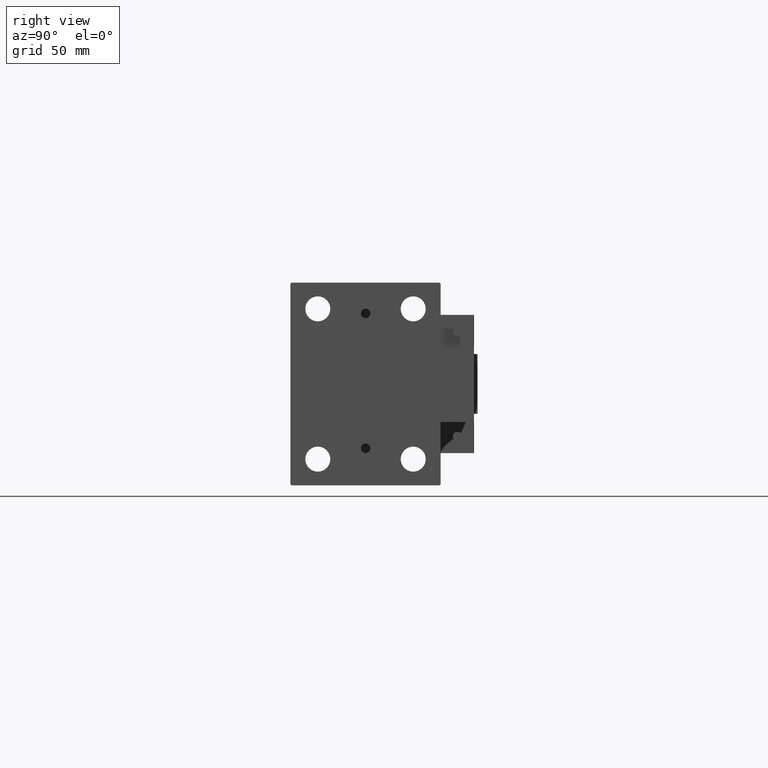
[diagram: clean part render]
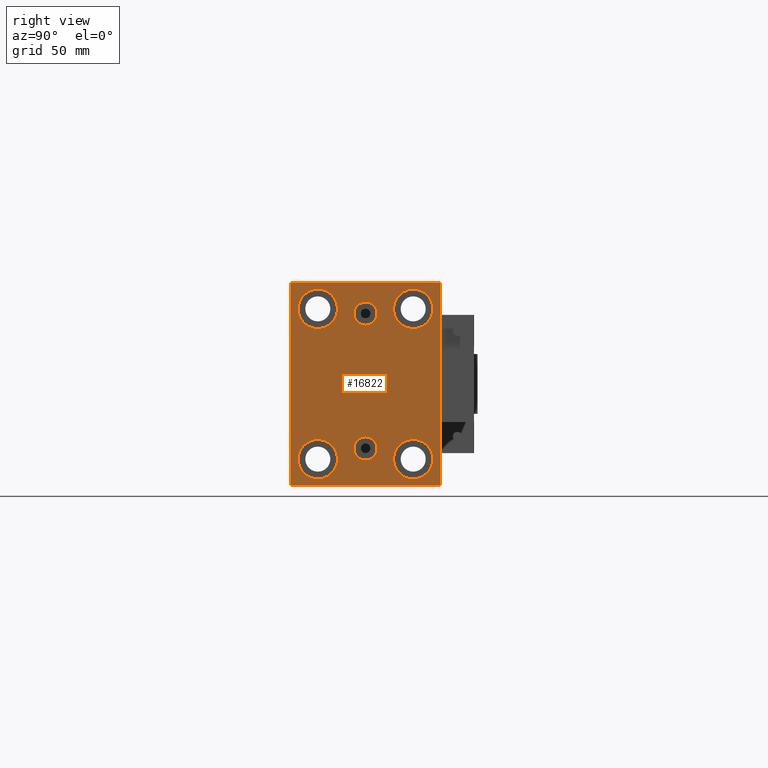
[diagram: same view with one face highlighted and labeled with its STEP entity id]
A machine part, right view. The second image highlights one B-rep face of the part: STEP entity #16822.
In plain terms, the highlighted planar face has unit normal (1, 0, 0).
Its self-contained STEP definition (entity closure, byte-faithful):
#744 = CARTESIAN_POINT ( 'NONE',  ( 183.0000000000000000, 20.00000000000000355, 31.50000000000000000 ) ) ;
#1246 = EDGE_LOOP ( 'NONE', ( #3122, #46456 ) ) ;
#1451 = ORIENTED_EDGE ( 'NONE', *, *, #28296, .T. ) ;
#1487 = VECTOR ( 'NONE', #6214, 1000.000000000000114 ) ;
#1720 = DIRECTION ( 'NONE',  ( -0.000000000000000000, -0.7071067811865474617, 0.7071067811865474617 ) ) ;
#1958 = VERTEX_POINT ( 'NONE', #20462 ) ;
#2478 = CARTESIAN_POINT ( 'NONE',  ( 183.0000000000000000, 36.75000000000002132, 36.75000000000002132 ) ) ;
#3008 = DIRECTION ( 'NONE',  ( 0.000000000000000000, 0.000000000000000000, 1.000000000000000000 ) ) ;
#3020 = AXIS2_PLACEMENT_3D ( 'NONE', #40654, #12912, #32570 ) ;
#3122 = ORIENTED_EDGE ( 'NONE', *, *, #31202, .F. ) ;
#3153 = EDGE_CURVE ( 'NONE', #47795, #1958, #39876, .T. ) ;
#3792 = DIRECTION ( 'NONE',  ( -1.000000000000000000, -0.000000000000000000, -0.000000000000000000 ) ) ;
#4295 = DIRECTION ( 'NONE',  ( 0.000000000000000000, 0.000000000000000000, 1.000000000000000000 ) ) ;
#4530 = ORIENTED_EDGE ( 'NONE', *, *, #49001, .T. ) ;
#5192 = VERTEX_POINT ( 'NONE', #7784 ) ;
#5677 = CARTESIAN_POINT ( 'NONE',  ( 183.0000000000000000, -3.571693674697836683E-15, 29.50000000000001066 ) ) ;
#6214 = DIRECTION ( 'NONE',  ( -0.000000000000000000, 0.7071067811865474617, 0.7071067811865474617 ) ) ;
#6237 = DIRECTION ( 'NONE',  ( -1.000000000000000000, -0.000000000000000000, -0.000000000000000000 ) ) ;
#6369 = DIRECTION ( 'NONE',  ( 0.000000000000000000, 0.000000000000000000, 1.000000000000000000 ) ) ;
#6477 = DIRECTION ( 'NONE',  ( 0.000000000000000000, 0.000000000000000000, -1.000000000000000000 ) ) ;
#7251 = EDGE_CURVE ( 'NONE', #31532, #39487, #26295, .T. ) ;
#7304 = AXIS2_PLACEMENT_3D ( 'NONE', #38324, #42507, #47198 ) ;
#7649 = EDGE_LOOP ( 'NONE', ( #46422, #1451 ) ) ;
#7784 = CARTESIAN_POINT ( 'NONE',  ( 183.0000000000000000, -20.00000000000000355, -39.74999999999999289 ) ) ;
#7909 = EDGE_LOOP ( 'NONE', ( #14417, #35187 ) ) ;
#7925 = EDGE_CURVE ( 'NONE', #25277, #40960, #42063, .T. ) ;
#8146 = VERTEX_POINT ( 'NONE', #45425 ) ;
#8321 = EDGE_CURVE ( 'NONE', #15987, #39029, #39122, .T. ) ;
#8442 = AXIS2_PLACEMENT_3D ( 'NONE', #51687, #3792, #3008 ) ;
#8457 = ORIENTED_EDGE ( 'NONE', *, *, #48066, .T. ) ;
#9128 = CARTESIAN_POINT ( 'NONE',  ( 183.0000000000000000, 19.99999999999999645, -39.74999999999999289 ) ) ;
#9464 = DIRECTION ( 'NONE',  ( 0.000000000000000000, 0.000000000000000000, 1.000000000000000000 ) ) ;
#9708 = DIRECTION ( 'NONE',  ( -1.000000000000000000, -0.000000000000000000, -0.000000000000000000 ) ) ;
#9787 = AXIS2_PLACEMENT_3D ( 'NONE', #5677, #37355, #13770 ) ;
#9886 = CARTESIAN_POINT ( 'NONE',  ( 183.0000000000000000, -3.571693674697836683E-15, 29.50000000000001066 ) ) ;
#10689 = CIRCLE ( 'NONE', #23239, 8.249999999999992895 ) ;
#11610 = ORIENTED_EDGE ( 'NONE', *, *, #31254, .T. ) ;
#12275 = EDGE_CURVE ( 'NONE', #8146, #24544, #35352, .T. ) ;
#12493 = AXIS2_PLACEMENT_3D ( 'NONE', #49317, #41214, #24740 ) ;
#12643 = ORIENTED_EDGE ( 'NONE', *, *, #13391, .F. ) ;
#12882 = ORIENTED_EDGE ( 'NONE', *, *, #8321, .T. ) ;
#12912 = DIRECTION ( 'NONE',  ( -1.000000000000000000, -0.000000000000000000, -0.000000000000000000 ) ) ;
#13077 = CIRCLE ( 'NONE', #41466, 8.249999999999992895 ) ;
#13092 = CARTESIAN_POINT ( 'NONE',  ( 183.0000000000000000, -31.50000000000000000, -42.00000000000000711 ) ) ;
#13246 = CARTESIAN_POINT ( 'NONE',  ( 183.0000000000000000, 31.50000000000001421, -42.50000000000000711 ) ) ;
#13391 = EDGE_CURVE ( 'NONE', #34664, #48414, #28715, .T. ) ;
#13574 = LINE ( 'NONE', #26130, #25122 ) ;
#13770 = DIRECTION ( 'NONE',  ( 0.000000000000000000, 0.000000000000000000, -1.000000000000000000 ) ) ;
#13980 = EDGE_LOOP ( 'NONE', ( #40907, #12643 ) ) ;
#14070 = ORIENTED_EDGE ( 'NONE', *, *, #17477, .T. ) ;
#14303 = CARTESIAN_POINT ( 'NONE',  ( 183.0000000000000000, -19.99999999999999645, 23.25000000000000355 ) ) ;
#14320 = CARTESIAN_POINT ( 'NONE',  ( 183.0000000000000000, 36.75000000000001421, -36.75000000000001421 ) ) ;
#14417 = ORIENTED_EDGE ( 'NONE', *, *, #41230, .T. ) ;
#14577 = DIRECTION ( 'NONE',  ( 0.000000000000000000, -1.000000000000000000, -2.202823461557850341E-16 ) ) ;
#15562 = DIRECTION ( 'NONE',  ( -0.000000000000000000, 0.7071067811865474617, -0.7071067811865474617 ) ) ;
#15566 = FACE_BOUND ( 'NONE', #32892, .T. ) ;
#15678 = CARTESIAN_POINT ( 'NONE',  ( 183.0000000000000000, -30.99999999999997158, 42.49999999999999289 ) ) ;
#15987 = VERTEX_POINT ( 'NONE', #13092 ) ;
#16143 = LINE ( 'NONE', #25285, #27634 ) ;
#16712 = DIRECTION ( 'NONE',  ( 0.000000000000000000, 0.000000000000000000, 1.000000000000000000 ) ) ;
#16822 = ADVANCED_FACE ( 'NONE', ( #19507, #35487, #15566, #47484, #43566, #36759, #32844 ), #29414, .T. ) ;
#17210 = DIRECTION ( 'NONE',  ( -1.000000000000000000, -0.000000000000000000, -0.000000000000000000 ) ) ;
#17232 = CIRCLE ( 'NONE', #45614, 8.249999999999992895 ) ;
#17457 = ORIENTED_EDGE ( 'NONE', *, *, #41286, .T. ) ;
#17477 = EDGE_CURVE ( 'NONE', #22801, #18572, #38043, .T. ) ;
#17498 = CIRCLE ( 'NONE', #12493, 4.859999999999995879 ) ;
#17876 = CARTESIAN_POINT ( 'NONE',  ( 183.0000000000000000, 0.000000000000000000, 0.000000000000000000 ) ) ;
#17883 = ORIENTED_EDGE ( 'NONE', *, *, #20667, .T. ) ;
#18073 = CIRCLE ( 'NONE', #3020, 8.250000000000000000 ) ;
#18540 = DIRECTION ( 'NONE',  ( 0.000000000000000000, 0.000000000000000000, 1.000000000000000000 ) ) ;
#18572 = VERTEX_POINT ( 'NONE', #27364 ) ;
#18616 = AXIS2_PLACEMENT_3D ( 'NONE', #32079, #9708, #9464 ) ;
#18891 = CARTESIAN_POINT ( 'NONE',  ( 183.0000000000000000, -20.00000000000000355, -23.24999999999999289 ) ) ;
#18929 = ORIENTED_EDGE ( 'NONE', *, *, #7925, .T. ) ;
#19075 = EDGE_CURVE ( 'NONE', #50819, #46262, #17232, .T. ) ;
#19178 = CIRCLE ( 'NONE', #20048, 4.859999999999999432 ) ;
#19312 = DIRECTION ( 'NONE',  ( 0.000000000000000000, 0.000000000000000000, 1.000000000000000000 ) ) ;
#19394 = EDGE_LOOP ( 'NONE', ( #11610, #17457, #48547, #12882, #8457, #18929, #24078, #31812 ) ) ;
#19501 = AXIS2_PLACEMENT_3D ( 'NONE', #45383, #49299, #6369 ) ;
#19507 = FACE_BOUND ( 'NONE', #1246, .T. ) ;
#19921 = VERTEX_POINT ( 'NONE', #15678 ) ;
#20048 = AXIS2_PLACEMENT_3D ( 'NONE', #9886, #45978, #6477 ) ;
#20462 = CARTESIAN_POINT ( 'NONE',  ( 183.0000000000000000, -3.571693674697836683E-15, 24.64000000000001123 ) ) ;
#20515 = LINE ( 'NONE', #47984, #30692 ) ;
#20667 = EDGE_CURVE ( 'NONE', #18572, #22801, #13077, .T. ) ;
#20780 = EDGE_CURVE ( 'NONE', #41586, #5192, #18073, .T. ) ;
#20898 = CARTESIAN_POINT ( 'NONE',  ( 183.0000000000000000, -2.976515330312223011E-15, 34.36000000000000654 ) ) ;
#21013 = CARTESIAN_POINT ( 'NONE',  ( 183.0000000000000000, 20.00000000000000355, 39.74999999999999289 ) ) ;
#21064 = CARTESIAN_POINT ( 'NONE',  ( 183.0000000000000000, -31.00000000000000000, -42.50000000000000711 ) ) ;
#21358 = DIRECTION ( 'NONE',  ( 0.000000000000000000, -1.632680918566406300E-16, 1.000000000000000000 ) ) ;
#22801 = VERTEX_POINT ( 'NONE', #14303 ) ;
#23239 = AXIS2_PLACEMENT_3D ( 'NONE', #744, #17210, #16712 ) ;
#24078 = ORIENTED_EDGE ( 'NONE', *, *, #32265, .T. ) ;
#24195 = CARTESIAN_POINT ( 'NONE',  ( 183.0000000000000000, -19.99999999999999645, 31.50000000000000000 ) ) ;
#24266 = VECTOR ( 'NONE', #21358, 1000.000000000000000 ) ;
#24544 = VERTEX_POINT ( 'NONE', #9128 ) ;
#24740 = DIRECTION ( 'NONE',  ( 0.000000000000000000, 0.000000000000000000, 1.000000000000000000 ) ) ;
#24883 = VECTOR ( 'NONE', #1720, 1000.000000000000114 ) ;
#25122 = VECTOR ( 'NONE', #29305, 1000.000000000000000 ) ;
#25277 = VERTEX_POINT ( 'NONE', #50064 ) ;
#25285 = CARTESIAN_POINT ( 'NONE',  ( 183.0000000000000000, -31.50000000000000000, -42.50000000000000711 ) ) ;
#25495 = AXIS2_PLACEMENT_3D ( 'NONE', #42849, #27681, #19312 ) ;
#25541 = LINE ( 'NONE', #13246, #24266 ) ;
#26130 = CARTESIAN_POINT ( 'NONE',  ( 183.0000000000000000, -31.50000000000000000, 42.49999999999999289 ) ) ;
#26268 = AXIS2_PLACEMENT_3D ( 'NONE', #17876, #29663, #45368 ) ;
#26295 = LINE ( 'NONE', #2478, #24883 ) ;
#26355 = CARTESIAN_POINT ( 'NONE',  ( 183.0000000000000000, 31.50000000000000000, 42.50000000000000711 ) ) ;
#26588 = CARTESIAN_POINT ( 'NONE',  ( 183.0000000000000000, -31.50000000000000000, 41.99999999999996447 ) ) ;
#27364 = CARTESIAN_POINT ( 'NONE',  ( 183.0000000000000000, -19.99999999999999645, 39.74999999999999289 ) ) ;
#27634 = VECTOR ( 'NONE', #44393, 1000.000000000000000 ) ;
#27681 = DIRECTION ( 'NONE',  ( -1.000000000000000000, -0.000000000000000000, -0.000000000000000000 ) ) ;
#28135 = CARTESIAN_POINT ( 'NONE',  ( 183.0000000000000000, 3.901724702083465828E-15, -22.13999999999999346 ) ) ;
#28296 = EDGE_CURVE ( 'NONE', #46262, #50819, #10689, .T. ) ;
#28378 = DIRECTION ( 'NONE',  ( -1.000000000000000000, -0.000000000000000000, -0.000000000000000000 ) ) ;
#28715 = CIRCLE ( 'NONE', #19501, 4.859999999999995879 ) ;
#29153 = ORIENTED_EDGE ( 'NONE', *, *, #12275, .T. ) ;
#29305 = DIRECTION ( 'NONE',  ( 0.000000000000000000, 0.000000000000000000, -1.000000000000000000 ) ) ;
#29414 = PLANE ( 'NONE',  #26268 ) ;
#29663 = DIRECTION ( 'NONE',  ( 1.000000000000000000, 0.000000000000000000, 0.000000000000000000 ) ) ;
#29865 = CIRCLE ( 'NONE', #7304, 8.250000000000000000 ) ;
#30692 = VECTOR ( 'NONE', #43805, 1000.000000000000114 ) ;
#31202 = EDGE_CURVE ( 'NONE', #1958, #47795, #19178, .T. ) ;
#31254 = EDGE_CURVE ( 'NONE', #39487, #19921, #34242, .T. ) ;
#31532 = VERTEX_POINT ( 'NONE', #33921 ) ;
#31812 = ORIENTED_EDGE ( 'NONE', *, *, #7251, .T. ) ;
#32079 = CARTESIAN_POINT ( 'NONE',  ( 183.0000000000000000, 19.99999999999999645, -31.49999999999999289 ) ) ;
#32265 = EDGE_CURVE ( 'NONE', #40960, #31532, #25541, .T. ) ;
#32570 = DIRECTION ( 'NONE',  ( 0.000000000000000000, 0.000000000000000000, 1.000000000000000000 ) ) ;
#32674 = CARTESIAN_POINT ( 'NONE',  ( 183.0000000000000000, 20.00000000000000355, 23.25000000000000355 ) ) ;
#32844 = FACE_OUTER_BOUND ( 'NONE', #19394, .T. ) ;
#32892 = EDGE_LOOP ( 'NONE', ( #4530, #29153 ) ) ;
#33921 = CARTESIAN_POINT ( 'NONE',  ( 183.0000000000000000, 31.50000000000000000, 42.00000000000003553 ) ) ;
#34242 = LINE ( 'NONE', #26355, #47592 ) ;
#34664 = VERTEX_POINT ( 'NONE', #28135 ) ;
#35187 = ORIENTED_EDGE ( 'NONE', *, *, #20780, .T. ) ;
#35352 = CIRCLE ( 'NONE', #18616, 8.250000000000000000 ) ;
#35487 = FACE_BOUND ( 'NONE', #13980, .T. ) ;
#35733 = CARTESIAN_POINT ( 'NONE',  ( 183.0000000000000000, 3.306546357697852550E-15, -31.85999999999998522 ) ) ;
#36759 = FACE_BOUND ( 'NONE', #7909, .T. ) ;
#36861 = VERTEX_POINT ( 'NONE', #26588 ) ;
#37355 = DIRECTION ( 'NONE',  ( 1.000000000000000000, 0.000000000000000000, 0.000000000000000000 ) ) ;
#38043 = CIRCLE ( 'NONE', #25495, 8.249999999999992895 ) ;
#38324 = CARTESIAN_POINT ( 'NONE',  ( 183.0000000000000000, -20.00000000000000355, -31.49999999999999289 ) ) ;
#38433 = CARTESIAN_POINT ( 'NONE',  ( 183.0000000000000000, 20.00000000000000355, 31.50000000000000000 ) ) ;
#39029 = VERTEX_POINT ( 'NONE', #21064 ) ;
#39122 = LINE ( 'NONE', #51406, #44974 ) ;
#39487 = VERTEX_POINT ( 'NONE', #41271 ) ;
#39876 = CIRCLE ( 'NONE', #9787, 4.859999999999999432 ) ;
#40654 = CARTESIAN_POINT ( 'NONE',  ( 183.0000000000000000, -20.00000000000000355, -31.49999999999999289 ) ) ;
#40907 = ORIENTED_EDGE ( 'NONE', *, *, #45742, .F. ) ;
#40960 = VERTEX_POINT ( 'NONE', #49622 ) ;
#41214 = DIRECTION ( 'NONE',  ( 1.000000000000000000, 0.000000000000000000, -0.000000000000000000 ) ) ;
#41230 = EDGE_CURVE ( 'NONE', #5192, #41586, #29865, .T. ) ;
#41271 = CARTESIAN_POINT ( 'NONE',  ( 183.0000000000000000, 31.00000000000002842, 42.50000000000000711 ) ) ;
#41286 = EDGE_CURVE ( 'NONE', #19921, #36861, #20515, .T. ) ;
#41466 = AXIS2_PLACEMENT_3D ( 'NONE', #24195, #28378, #4295 ) ;
#41586 = VERTEX_POINT ( 'NONE', #18891 ) ;
#42063 = LINE ( 'NONE', #14320, #1487 ) ;
#42507 = DIRECTION ( 'NONE',  ( -1.000000000000000000, -0.000000000000000000, -0.000000000000000000 ) ) ;
#42849 = CARTESIAN_POINT ( 'NONE',  ( 183.0000000000000000, -19.99999999999999645, 31.50000000000000000 ) ) ;
#43566 = FACE_BOUND ( 'NONE', #7649, .T. ) ;
#43569 = EDGE_LOOP ( 'NONE', ( #14070, #17883 ) ) ;
#43805 = DIRECTION ( 'NONE',  ( 0.000000000000000000, -0.7071067811865474617, -0.7071067811865474617 ) ) ;
#44393 = DIRECTION ( 'NONE',  ( 0.000000000000000000, 1.000000000000000000, 0.000000000000000000 ) ) ;
#44974 = VECTOR ( 'NONE', #15562, 1000.000000000000114 ) ;
#45368 = DIRECTION ( 'NONE',  ( 0.000000000000000000, 0.000000000000000000, -1.000000000000000000 ) ) ;
#45383 = CARTESIAN_POINT ( 'NONE',  ( 183.0000000000000000, 3.306546357697852550E-15, -26.99999999999998934 ) ) ;
#45425 = CARTESIAN_POINT ( 'NONE',  ( 183.0000000000000000, 19.99999999999999645, -23.24999999999999289 ) ) ;
#45614 = AXIS2_PLACEMENT_3D ( 'NONE', #38433, #6237, #18540 ) ;
#45742 = EDGE_CURVE ( 'NONE', #48414, #34664, #17498, .T. ) ;
#45978 = DIRECTION ( 'NONE',  ( 1.000000000000000000, 0.000000000000000000, 0.000000000000000000 ) ) ;
#46262 = VERTEX_POINT ( 'NONE', #21013 ) ;
#46422 = ORIENTED_EDGE ( 'NONE', *, *, #19075, .T. ) ;
#46456 = ORIENTED_EDGE ( 'NONE', *, *, #3153, .F. ) ;
#47198 = DIRECTION ( 'NONE',  ( 0.000000000000000000, 0.000000000000000000, 1.000000000000000000 ) ) ;
#47484 = FACE_BOUND ( 'NONE', #43569, .T. ) ;
#47592 = VECTOR ( 'NONE', #14577, 1000.000000000000000 ) ;
#47795 = VERTEX_POINT ( 'NONE', #20898 ) ;
#47984 = CARTESIAN_POINT ( 'NONE',  ( 183.0000000000000000, -36.74999999999997868, 36.74999999999997868 ) ) ;
#48066 = EDGE_CURVE ( 'NONE', #39029, #25277, #16143, .T. ) ;
#48414 = VERTEX_POINT ( 'NONE', #35733 ) ;
#48547 = ORIENTED_EDGE ( 'NONE', *, *, #50708, .T. ) ;
#49001 = EDGE_CURVE ( 'NONE', #24544, #8146, #51034, .T. ) ;
#49299 = DIRECTION ( 'NONE',  ( 1.000000000000000000, 0.000000000000000000, -0.000000000000000000 ) ) ;
#49317 = CARTESIAN_POINT ( 'NONE',  ( 183.0000000000000000, 3.306546357697852550E-15, -26.99999999999998934 ) ) ;
#49622 = CARTESIAN_POINT ( 'NONE',  ( 183.0000000000000000, 31.50000000000001421, -42.00000000000000711 ) ) ;
#50064 = CARTESIAN_POINT ( 'NONE',  ( 183.0000000000000000, 31.00000000000001421, -42.50000000000000711 ) ) ;
#50708 = EDGE_CURVE ( 'NONE', #36861, #15987, #13574, .T. ) ;
#50819 = VERTEX_POINT ( 'NONE', #32674 ) ;
#51034 = CIRCLE ( 'NONE', #8442, 8.250000000000000000 ) ;
#51406 = CARTESIAN_POINT ( 'NONE',  ( 183.0000000000000000, -36.75000000000000711, -36.75000000000000711 ) ) ;
#51687 = CARTESIAN_POINT ( 'NONE',  ( 183.0000000000000000, 19.99999999999999645, -31.49999999999999289 ) ) ;